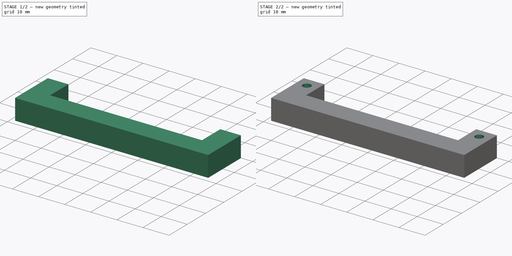
[diagram: build sequence overview — one tinted view per stage of 2, left to right]
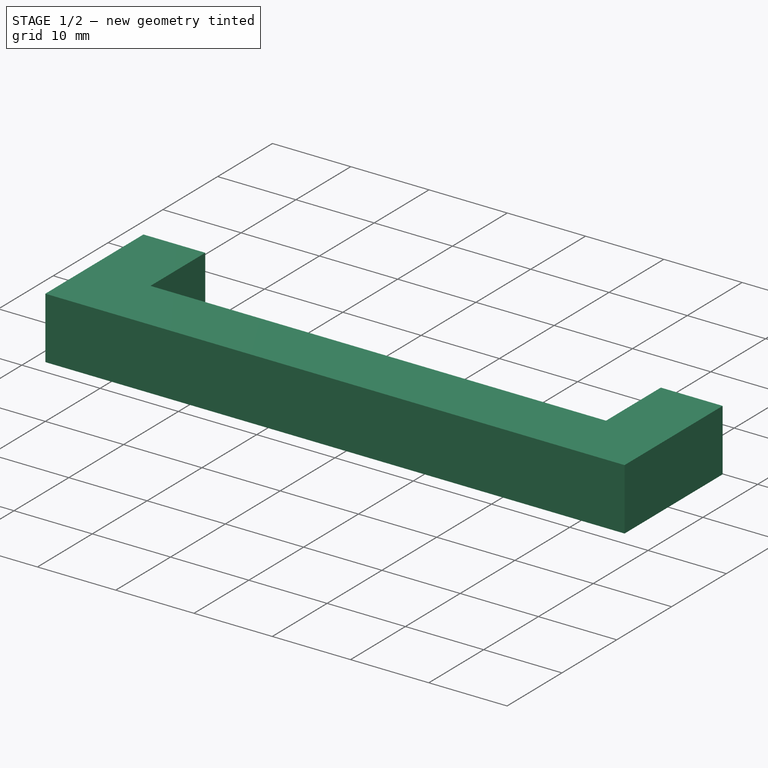
[diagram: stage 1 of 2 — iso view after this stage's code; geometry added in this stage tinted green]
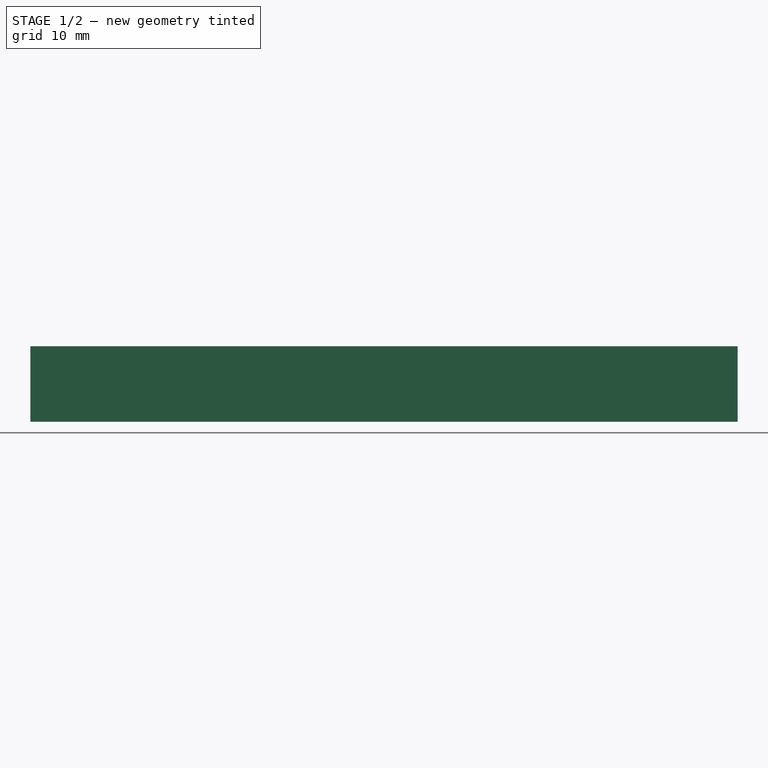
[diagram: stage 1 of 2 — front view after this stage's code; geometry added in this stage tinted green]
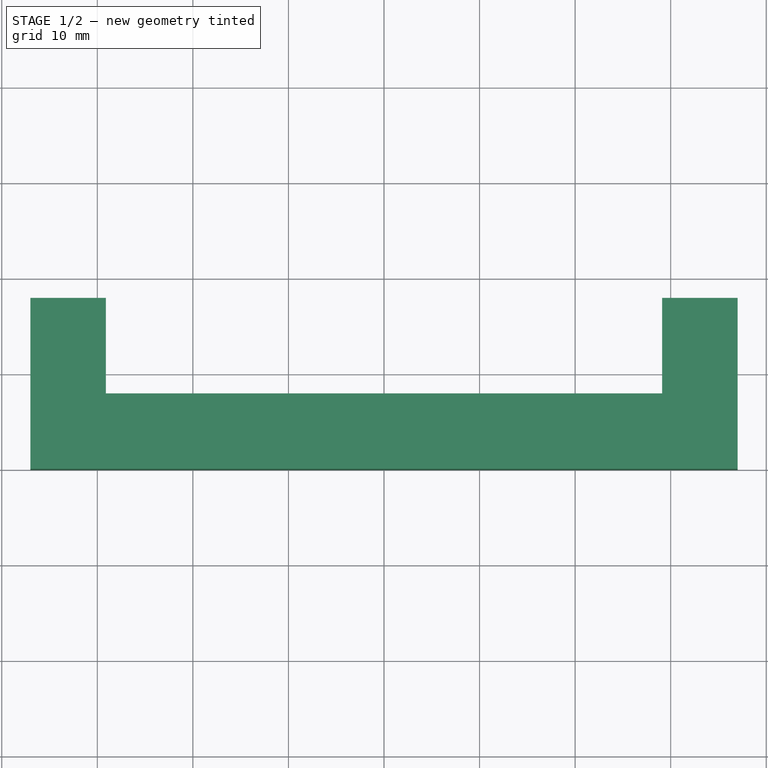
[diagram: stage 1 of 2 — top view after this stage's code; geometry added in this stage tinted green]
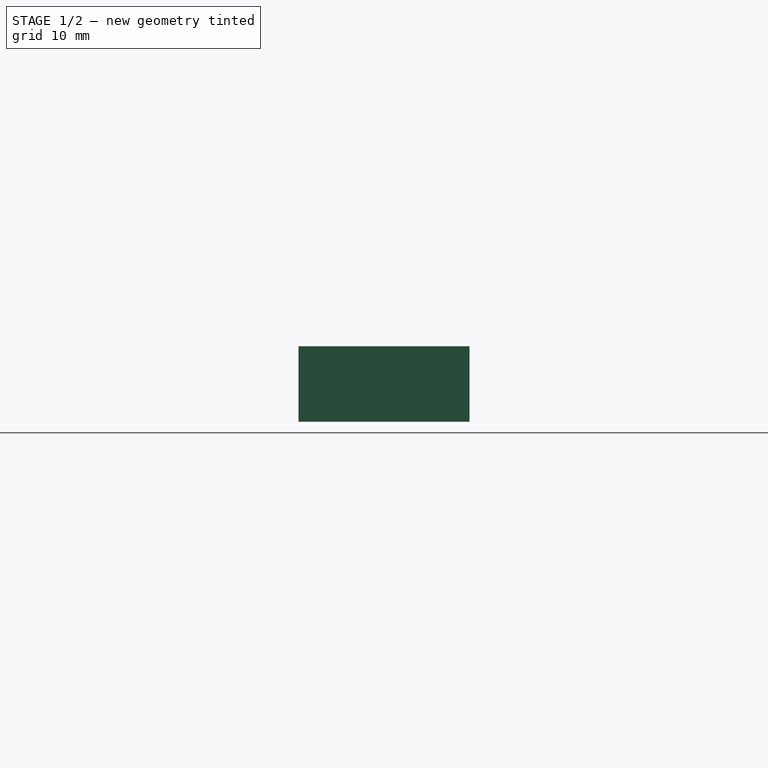
[diagram: stage 1 of 2 — right view after this stage's code; geometry added in this stage tinted green]
FCSTD DOCUMENT  (FreeCAD 0.19R)
Label: Pilier_Gauche
License: All rights reserved
LicenseURL: http://en.wikipedia.org/wiki/All_rights_reserved
objects: Sketcher::SketchObject×2, PartDesign::Pad×1, PartDesign::Pocket×1, PartDesign::Body×1
note: 7 computed .brp shape members not serialized (recipe doc carries the construction recipe); baked Part::Feature solids carry a one-line shape summary decoded from their .brp

FEATURE [Sketcher::SketchObject] Sketch
  FullyConstrained = true
  MapMode = 5
  Support = -> [XY_Plane]
  sketch-geometry (8):
    g0: LineSegment StartX=-37 StartY=17.9 StartZ=0 EndX=-37 EndY=0 EndZ=0
    g1: LineSegment StartX=-37 StartY=0 StartZ=0 EndX=37 EndY=0 EndZ=0
    g2: LineSegment StartX=37 StartY=0 StartZ=0 EndX=37 EndY=17.9 EndZ=0
    g3: LineSegment StartX=37 StartY=17.9 StartZ=0 EndX=29.1 EndY=17.9 EndZ=0
    g4: LineSegment StartX=29.1 StartY=17.9 StartZ=0 EndX=29.1 EndY=7.9 EndZ=0
    g5: LineSegment StartX=29.1 StartY=7.9 StartZ=0 EndX=-29.1 EndY=7.9 EndZ=0
    g6: LineSegment StartX=-29.1 StartY=7.9 StartZ=0 EndX=-29.1 EndY=17.9 EndZ=0
    g7: LineSegment StartX=-29.1 StartY=17.9 StartZ=0 EndX=-37 EndY=17.9 EndZ=0
  constraints (23):
    c: Vertical(g0)
    c: Coincident(g1,g0)
    c: Coincident(g2,g1)
    c: Coincident(g3,g2)
    c: Horizontal(g3)
    c: Coincident(g4,g3)
    c: Vertical(g4)
    c: Coincident(g5,g4)
    c: Horizontal(g5)
    c: Coincident(g6,g5)
    c: Vertical(g6)
    c: Coincident(g7,g6)
    c: Coincident(g7,g0)
    c: Horizontal(g7)
    c: Vertical(g2)
    c: Equal(g3,g7)
    c: DistanceX(g3,g3) = 7.9
    c: PointOnObject(g1,g-1)
    c: Symmetric(g0,g1,g-2)
    c: Equal(g6,g4)
    c: DistanceX(g5,g4) = 58.2
    c: DistanceY(g-1,g2) = 17.9
    c: DistanceY(g-1,g4) = 7.9
FEATURE [PartDesign::Pad] Pad
  Direction = (1,1,1)
  Length = 7.9
  Length2 = 100
  Profile = -> Sketch
  Type = 0
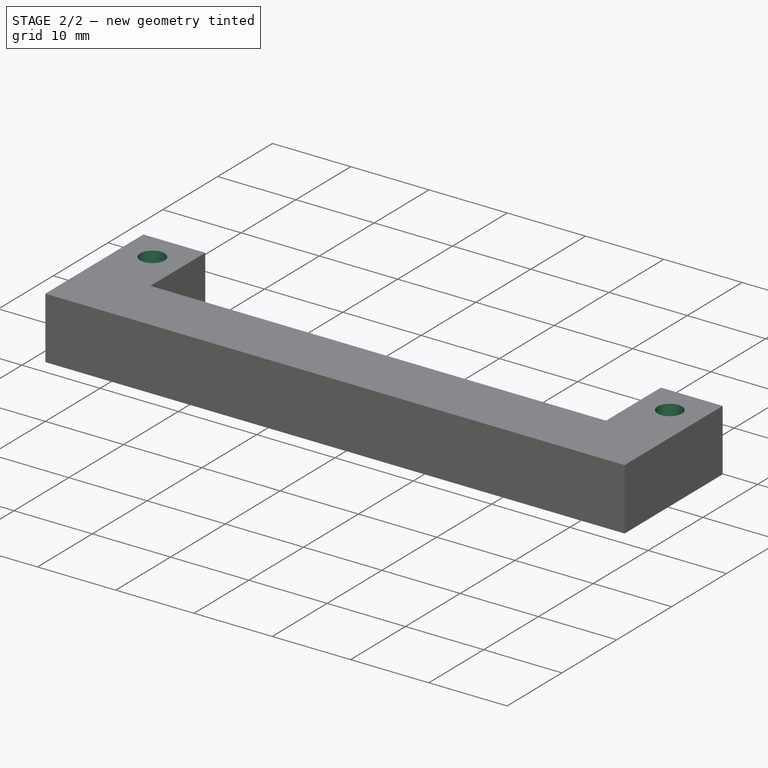
[diagram: stage 2 of 2 — iso view after this stage's code; geometry added in this stage tinted green]
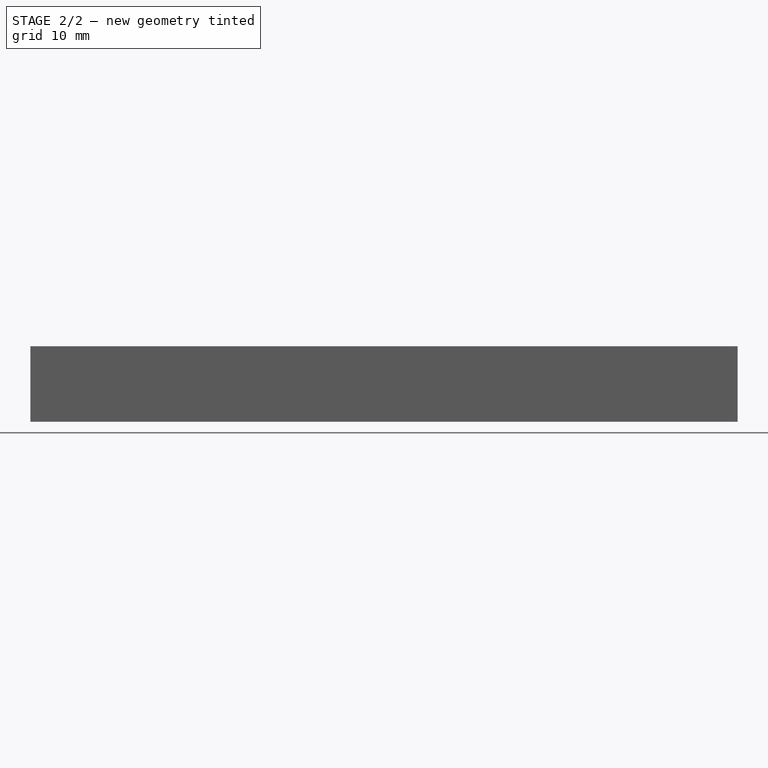
[diagram: stage 2 of 2 — front view after this stage's code; geometry added in this stage tinted green]
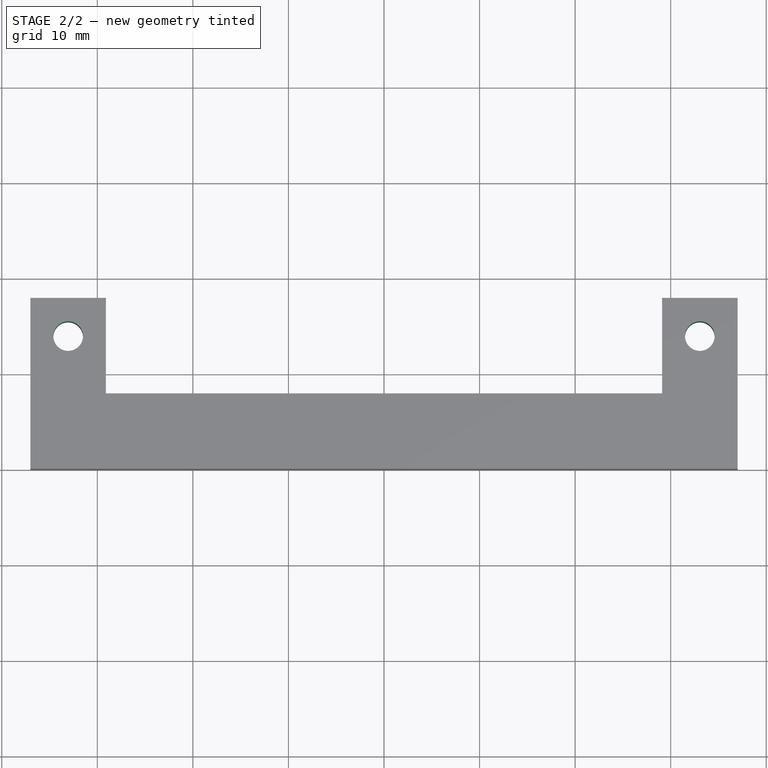
[diagram: stage 2 of 2 — top view after this stage's code; geometry added in this stage tinted green]
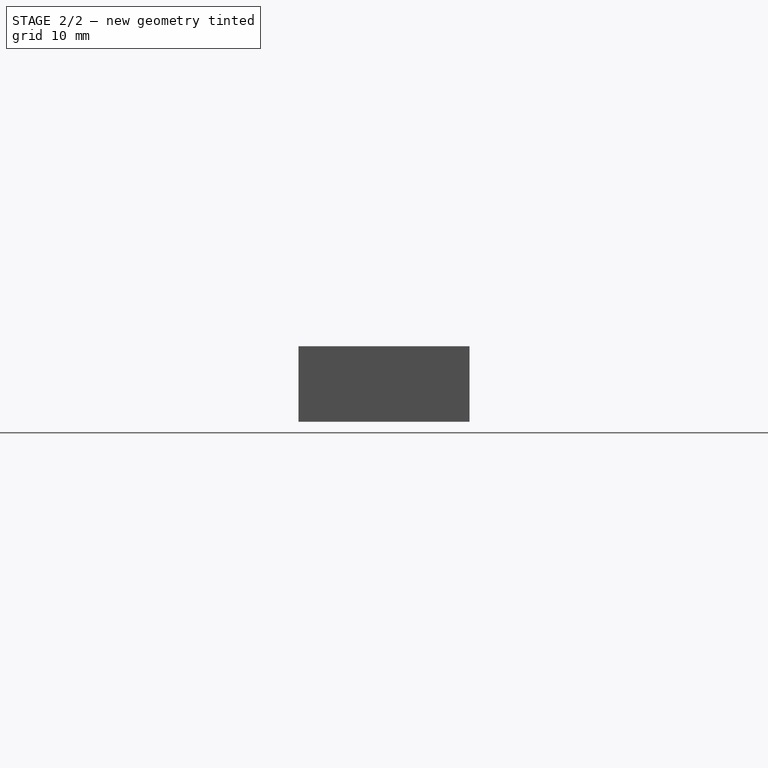
[diagram: stage 2 of 2 — right view after this stage's code; geometry added in this stage tinted green]
FEATURE [Sketcher::SketchObject] Sketch001
  ExternalGeometry = -> [Pad]
  FullyConstrained = true
  MapMode = 5
  Placement = pos=(0,0,7.9) rot=(0,0,1;0rad)
  Support = -> [Pad]
  sketch-geometry (3):
    g0: Circle CenterX=33.05 CenterY=13.9 CenterZ=0 NormalX=0 NormalY=0 NormalZ=1 AngleXU=0 Radius=1.55
    g1: Circle CenterX=-33.05 CenterY=13.9 CenterZ=0 NormalX=0 NormalY=0 NormalZ=1 AngleXU=0 Radius=1.55
    g2: LineSegment StartX=33.05 StartY=13.9 StartZ=0 EndX=33.05 EndY=17.9 EndZ=0
  constraints (7):
    c: Equal(g1,g0)
    c: Diameter(g0) = 3.1
    c: Symmetric(g1,g0,g-2)
    c: Coincident(g2,g0)
    c: PointOnObject(g2,g-4)
    c: Symmetric(g-4,g-4,g2)
    c: DistanceY(g0,g-4) = 4
FEATURE [PartDesign::Pocket] Pocket
  BaseFeature = -> Pad
  Length = 5
  Length2 = 100
  Profile = -> Sketch001
  Type = 1
FEATURE [PartDesign::Body] Body
  Group = -> [Sketch,Pad,Sketch001,Pocket]
  Origin = -> Origin
  Tip = -> Pocket
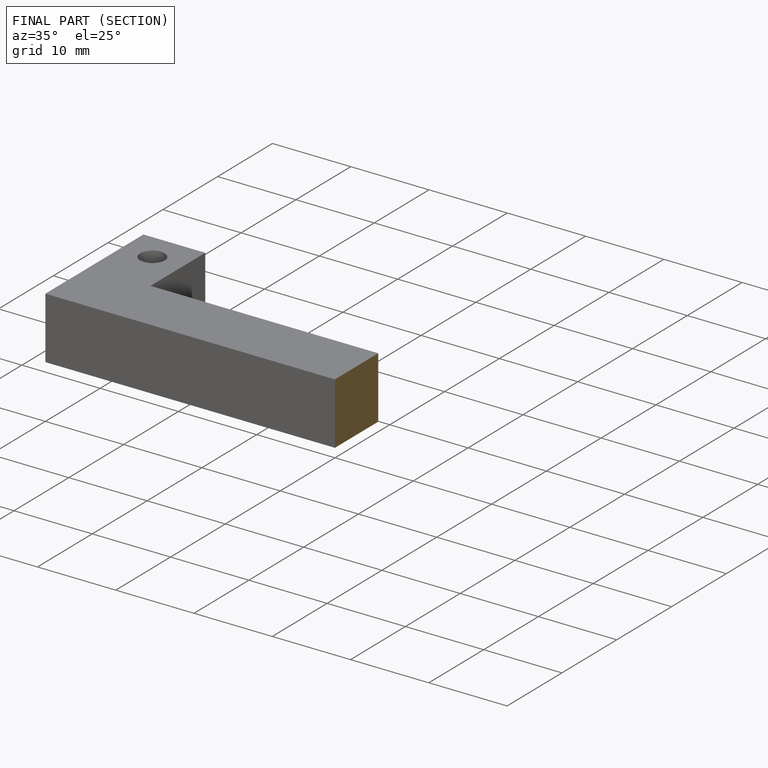
[diagram: finished part — half-section view (interior)]
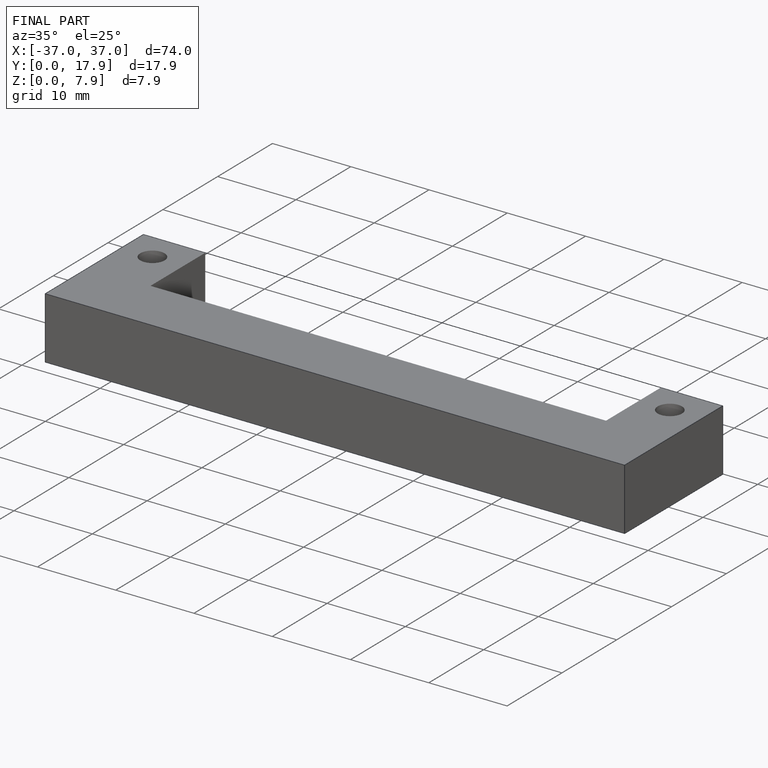
[diagram: finished part — iso view with bounding-box wireframe]
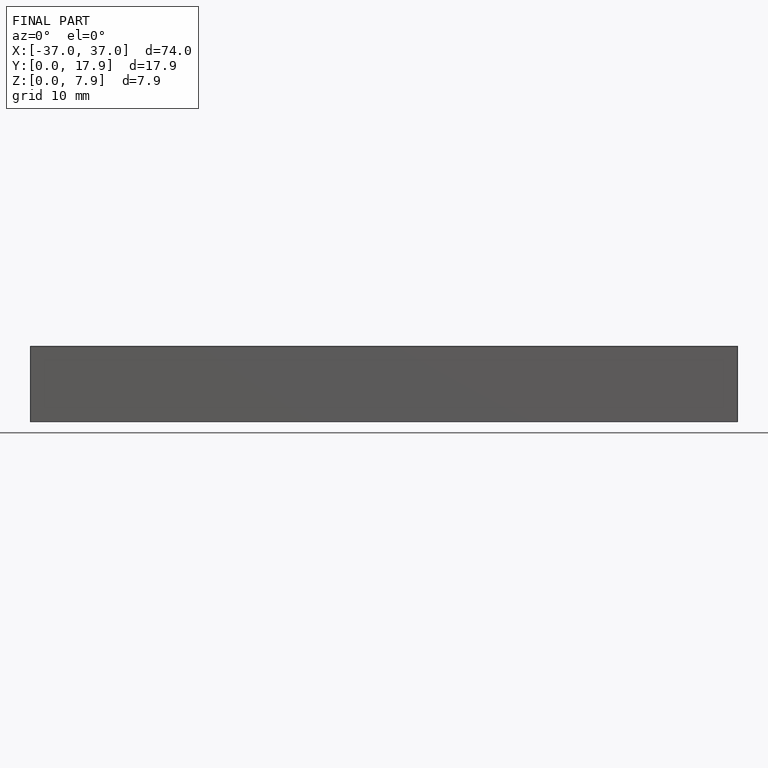
[diagram: finished part — front view with bounding-box wireframe]
